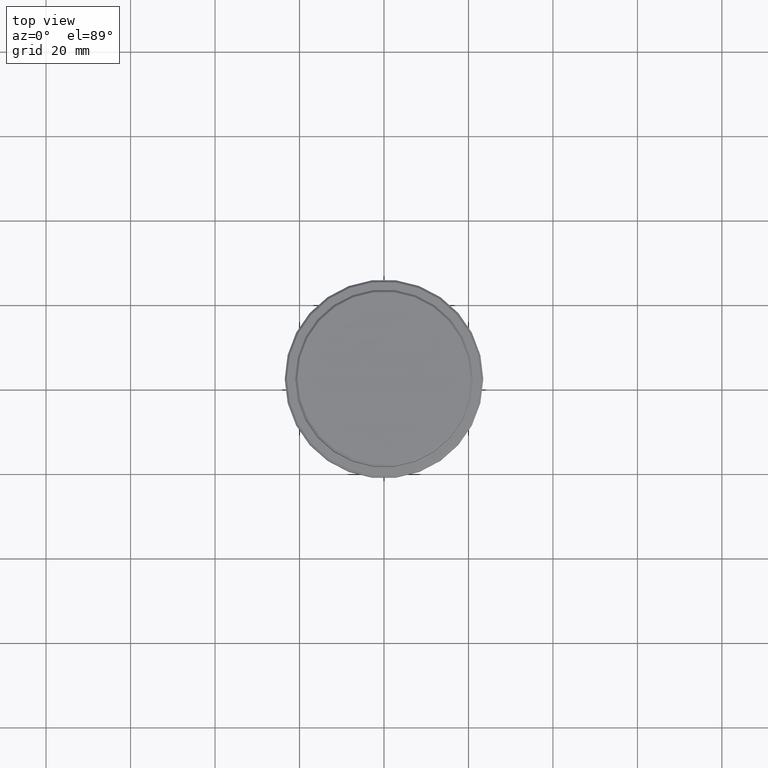
[diagram: clean part render]
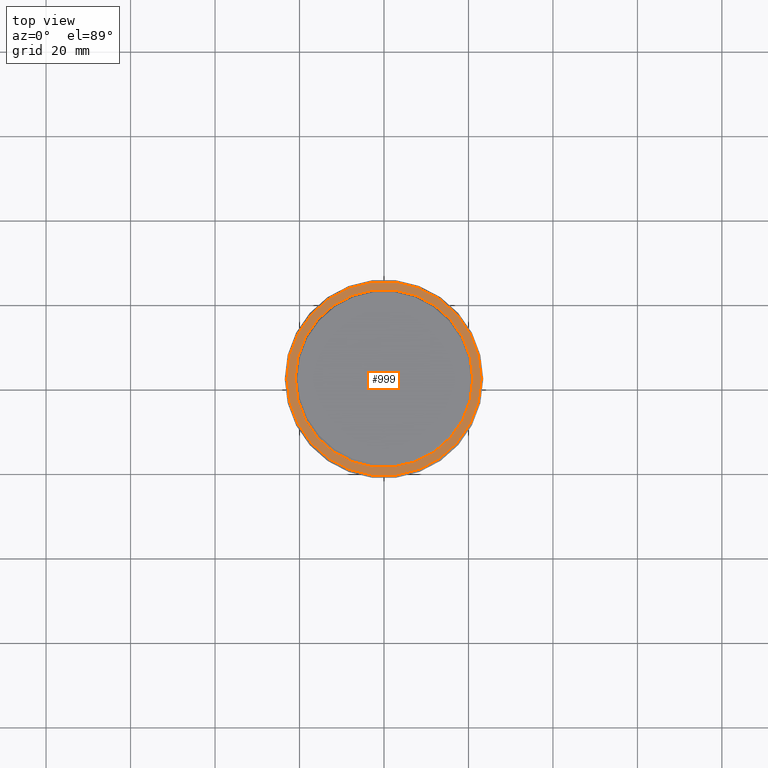
[diagram: same view with one face highlighted and labeled with its STEP entity id]
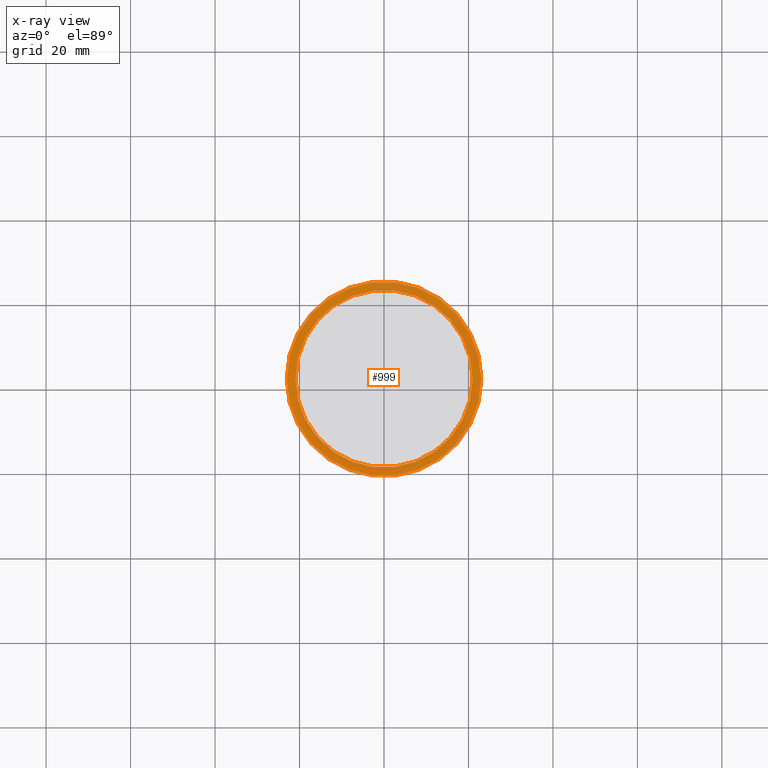
[diagram: x-ray of the same camera — body ghosted, the highlighted face saturated]
A machine part, top view. The second image highlights one B-rep face of the part: STEP entity #999.
The next image is the same camera in x-ray: the body ghosted, the highlighted face saturated — about 0% of this face is hidden behind the body in this view.
In plain terms, the highlighted planar face has unit normal (0, -0, 1).
Its self-contained STEP definition (entity closure, byte-faithful):
#39 = AXIS2_PLACEMENT_3D ( 'NONE', #1181, #524, #1409 ) ;
#103 = FACE_OUTER_BOUND ( 'NONE', #1039, .T. ) ;
#175 = CIRCLE ( 'NONE', #966, 23.00000000000001066 ) ;
#178 = CARTESIAN_POINT ( 'NONE',  ( -20.99999999999999289, 2.571758278209440872E-15, -9.000000000000000000 ) ) ;
#197 = AXIS2_PLACEMENT_3D ( 'NONE', #979, #1323, #547 ) ;
#266 = EDGE_CURVE ( 'NONE', #940, #1146, #175, .T. ) ;
#284 = ORIENTED_EDGE ( 'NONE', *, *, #1196, .T. ) ;
#303 = AXIS2_PLACEMENT_3D ( 'NONE', #590, #571, #452 ) ;
#322 = DIRECTION ( 'NONE',  ( -0.000000000000000000, -0.000000000000000000, 1.000000000000000000 ) ) ;
#325 = CARTESIAN_POINT ( 'NONE',  ( -23.00000000000001066, 0.000000000000000000, -9.000000000000000000 ) ) ;
#387 = EDGE_LOOP ( 'NONE', ( #1080, #478 ) ) ;
#452 = DIRECTION ( 'NONE',  ( 1.000000000000000000, 0.000000000000000000, 0.000000000000000000 ) ) ;
#478 = ORIENTED_EDGE ( 'NONE', *, *, #627, .T. ) ;
#524 = DIRECTION ( 'NONE',  ( 0.000000000000000000, -0.000000000000000000, 1.000000000000000000 ) ) ;
#540 = DIRECTION ( 'NONE',  ( 1.000000000000000000, 0.000000000000000000, 0.000000000000000000 ) ) ;
#547 = DIRECTION ( 'NONE',  ( 1.000000000000000000, 0.000000000000000000, 0.000000000000000000 ) ) ;
#571 = DIRECTION ( 'NONE',  ( 0.000000000000000000, 0.000000000000000000, -1.000000000000000000 ) ) ;
#590 = CARTESIAN_POINT ( 'NONE',  ( 0.000000000000000000, 0.000000000000000000, -9.000000000000000000 ) ) ;
#627 = EDGE_CURVE ( 'NONE', #861, #1273, #1335, .T. ) ;
#653 = AXIS2_PLACEMENT_3D ( 'NONE', #1006, #1227, #1016 ) ;
#681 = CARTESIAN_POINT ( 'NONE',  ( 23.00000000000001066, 2.847303808017596928E-15, -9.000000000000000000 ) ) ;
#861 = VERTEX_POINT ( 'NONE', #178 ) ;
#871 = PLANE ( 'NONE',  #39 ) ;
#909 = CIRCLE ( 'NONE', #303, 20.99999999999999289 ) ;
#930 = ORIENTED_EDGE ( 'NONE', *, *, #266, .T. ) ;
#940 = VERTEX_POINT ( 'NONE', #325 ) ;
#966 = AXIS2_PLACEMENT_3D ( 'NONE', #967, #322, #540 ) ;
#967 = CARTESIAN_POINT ( 'NONE',  ( 0.000000000000000000, 0.000000000000000000, -9.000000000000000000 ) ) ;
#979 = CARTESIAN_POINT ( 'NONE',  ( 0.000000000000000000, 0.000000000000000000, -9.000000000000000000 ) ) ;
#999 = ADVANCED_FACE ( 'NONE', ( #103, #1283 ), #871, .T. ) ;
#1006 = CARTESIAN_POINT ( 'NONE',  ( 0.000000000000000000, 0.000000000000000000, -9.000000000000000000 ) ) ;
#1016 = DIRECTION ( 'NONE',  ( 1.000000000000000000, 0.000000000000000000, 0.000000000000000000 ) ) ;
#1039 = EDGE_LOOP ( 'NONE', ( #930, #284 ) ) ;
#1080 = ORIENTED_EDGE ( 'NONE', *, *, #1182, .T. ) ;
#1141 = CARTESIAN_POINT ( 'NONE',  ( 20.99999999999999289, 0.000000000000000000, -9.000000000000000000 ) ) ;
#1146 = VERTEX_POINT ( 'NONE', #681 ) ;
#1181 = CARTESIAN_POINT ( 'NONE',  ( 0.000000000000000000, 20.49999999999999645, -9.000000000000000000 ) ) ;
#1182 = EDGE_CURVE ( 'NONE', #1273, #861, #909, .T. ) ;
#1196 = EDGE_CURVE ( 'NONE', #1146, #940, #1268, .T. ) ;
#1227 = DIRECTION ( 'NONE',  ( -0.000000000000000000, -0.000000000000000000, 1.000000000000000000 ) ) ;
#1268 = CIRCLE ( 'NONE', #653, 23.00000000000001066 ) ;
#1273 = VERTEX_POINT ( 'NONE', #1141 ) ;
#1283 = FACE_BOUND ( 'NONE', #387, .T. ) ;
#1323 = DIRECTION ( 'NONE',  ( 0.000000000000000000, 0.000000000000000000, -1.000000000000000000 ) ) ;
#1335 = CIRCLE ( 'NONE', #197, 20.99999999999999289 ) ;
#1409 = DIRECTION ( 'NONE',  ( 1.000000000000000000, 0.000000000000000000, 0.000000000000000000 ) ) ;